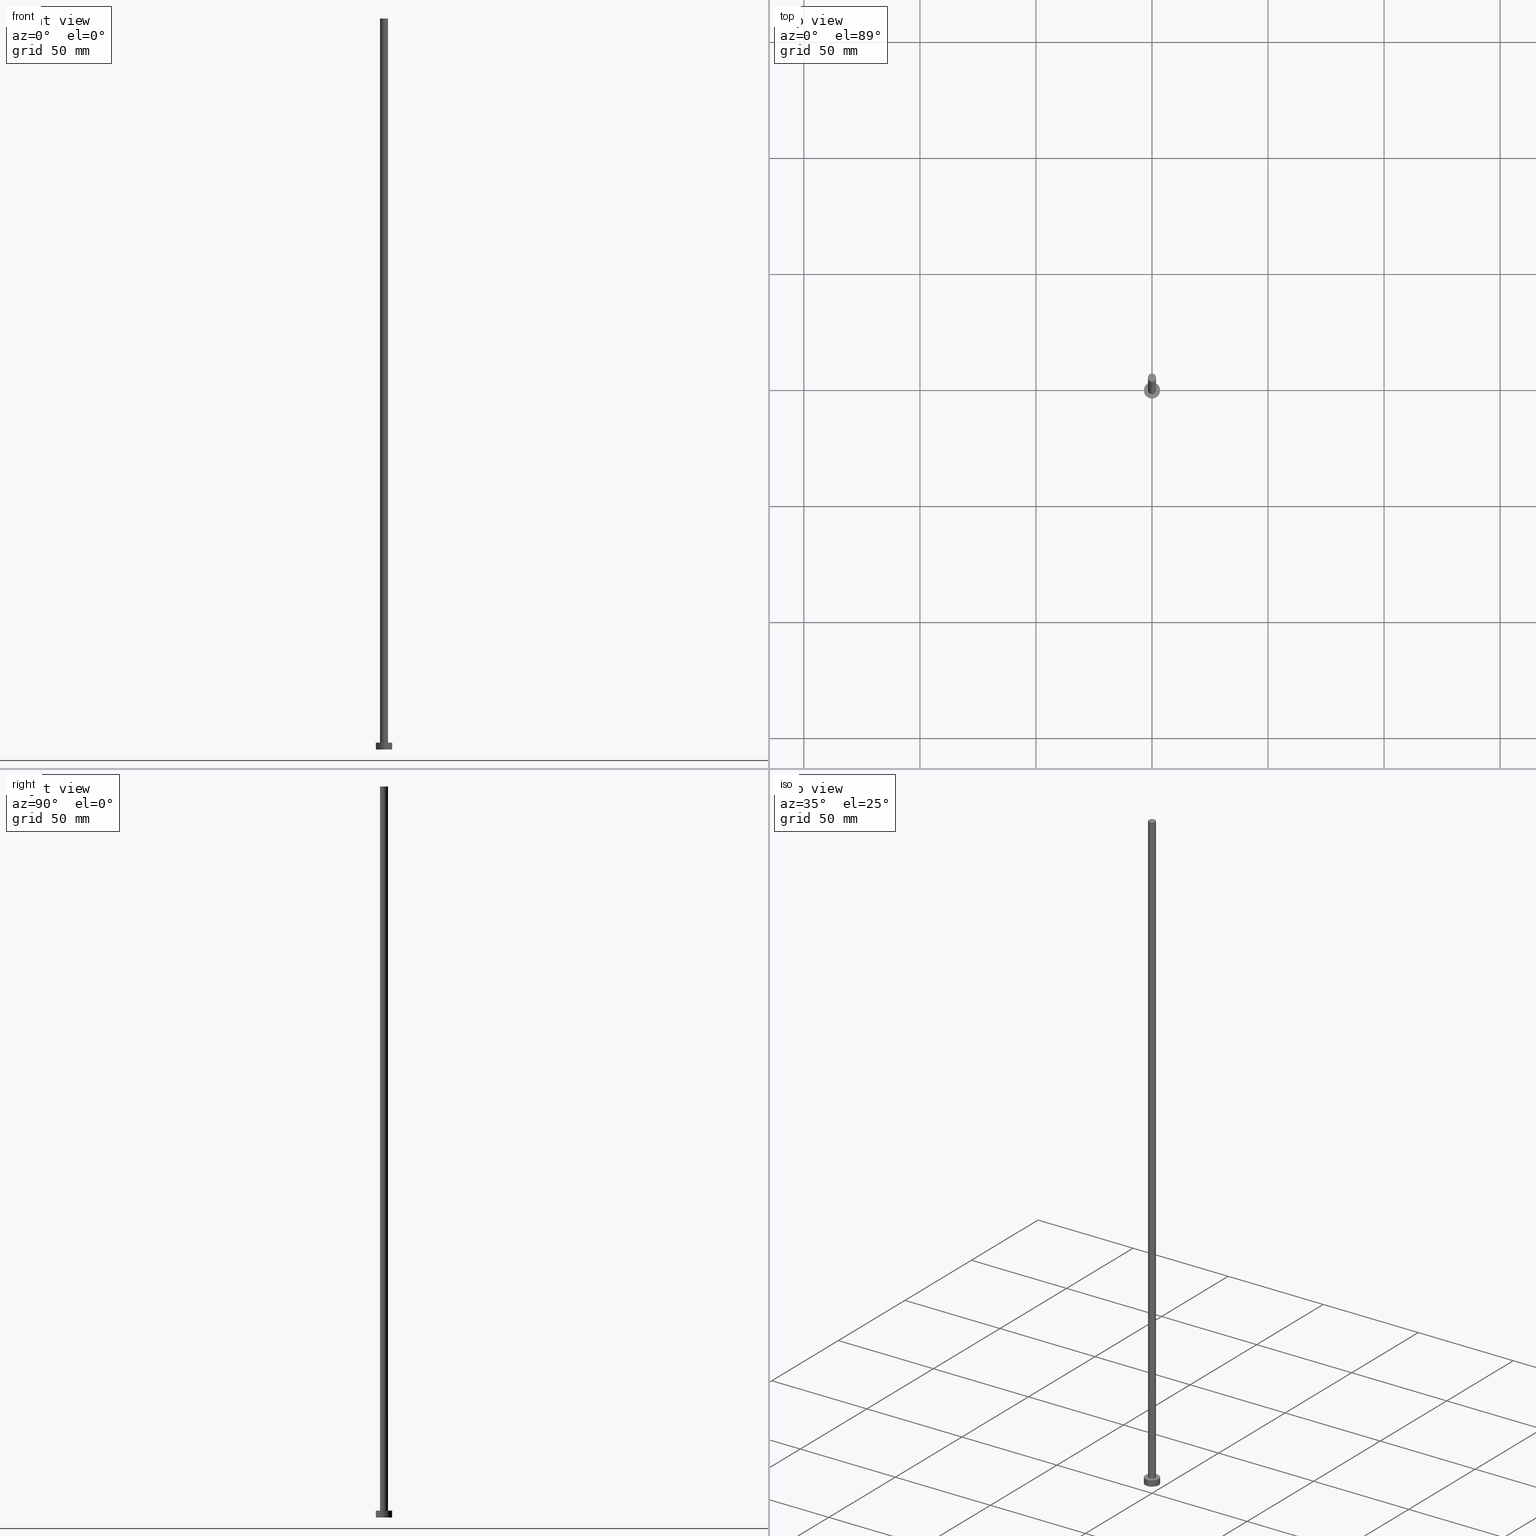
[diagram: canonical four-view strip — front | top / right | iso, engineering-drawing reading convention]
A machine part, canonical four-view strip (front | top / right | iso — engineering-drawing reading convention). The complete STEP part file that produces these views, byte-faithful:
ISO-10303-21;
HEADER;
FILE_DESCRIPTION (( 'STEP AP203' ),
    '1' );
FILE_NAME ('91bf.STEP',
    '2023-02-13T15:34:18',
    ( '' ),
    ( '' ),
    'SwSTEP 2.0',
    'SolidWorks 2019',
    '' );
FILE_SCHEMA (( 'CONFIG_CONTROL_DESIGN' ));
ENDSEC;

DATA;
#1 = DIRECTION ( 'NONE',  ( 1.000000000000000000, 0.000000000000000000, -0.000000000000000000 ) ) ;
#2 = ORIENTED_EDGE ( 'NONE', *, *, #54, .T. ) ;
#3 = AXIS2_PLACEMENT_3D ( 'NONE', #217, #252, #75 ) ;
#4 = AXIS2_PLACEMENT_3D ( 'NONE', #226, #166, #92 ) ;
#5 = APPROVAL_STATUS ( 'not_yet_approved' ) ;
#6 = AXIS2_PLACEMENT_3D ( 'NONE', #99, #160, #19 ) ;
#7 = CARTESIAN_POINT ( 'NONE',  ( -1.750000000000000000, 0.000000000000000000, 3.000000000000000000 ) ) ;
#8 = FACE_OUTER_BOUND ( 'NONE', #180, .T. ) ;
#9 = EDGE_LOOP ( 'NONE', ( #25, #183, #145, #2 ) ) ;
#10 = VERTEX_POINT ( 'NONE', #7 ) ;
#11 = CARTESIAN_POINT ( 'NONE',  ( 0.000000000000000000, 0.000000000000000000, 3.000000000000000000 ) ) ;
#12 = VECTOR ( 'NONE', #26, 1000.000000000000000 ) ;
#13 = PRODUCT_DEFINITION_FORMATION_WITH_SPECIFIED_SOURCE ( 'LIBOVOLN�', '', #168, .NOT_KNOWN. ) ;
#14 = CARTESIAN_POINT ( 'NONE',  ( 0.000000000000000000, 0.000000000000000000, 315.0000000000000000 ) ) ;
#15 = APPROVAL_DATE_TIME ( #200, #94 ) ;
#16 = CC_DESIGN_PERSON_AND_ORGANIZATION_ASSIGNMENT ( #59, #105, ( #149 ) ) ;
#17 = PLANE ( 'NONE',  #3 ) ;
#18 = PERSON_AND_ORGANIZATION ( #45, #107 ) ;
#19 = DIRECTION ( 'NONE',  ( 1.000000000000000000, 0.000000000000000000, 0.000000000000000000 ) ) ;
#20 = DIRECTION ( 'NONE',  ( 0.000000000000000000, 0.000000000000000000, 1.000000000000000000 ) ) ;
#21 = DATE_AND_TIME ( #219, #24 ) ;
#22 = ORIENTED_EDGE ( 'NONE', *, *, #177, .T. ) ;
#23 = VECTOR ( 'NONE', #109, 1000.000000000000000 ) ;
#24 = LOCAL_TIME ( 16, 34, 18.00000000000000000, #144 ) ;
#25 = ORIENTED_EDGE ( 'NONE', *, *, #242, .F. ) ;
#26 = DIRECTION ( 'NONE',  ( -0.000000000000000000, -0.000000000000000000, -1.000000000000000000 ) ) ;
#27 = DIRECTION ( 'NONE',  ( -0.000000000000000000, -0.000000000000000000, -1.000000000000000000 ) ) ;
#28 = AXIS2_PLACEMENT_3D ( 'NONE', #56, #46, #220 ) ;
#29 = CC_DESIGN_SECURITY_CLASSIFICATION ( #149, ( #13 ) ) ;
#30 =( NAMED_UNIT ( * ) PLANE_ANGLE_UNIT ( ) SI_UNIT ( $, .RADIAN. ) );
#31 = ORIENTED_EDGE ( 'NONE', *, *, #190, .T. ) ;
#32 = ADVANCED_FACE ( 'NONE', ( #86 ), #167, .T. ) ;
#33 = APPROVAL_PERSON_ORGANIZATION ( #171, #61, #53 ) ;
#34 = CARTESIAN_POINT ( 'NONE',  ( 0.000000000000000000, 0.000000000000000000, 315.0000000000000000 ) ) ;
#35 = MANIFOLD_SOLID_BREP ( 'P�idat vysunut�m3', #191 ) ;
#36 = FACE_OUTER_BOUND ( 'NONE', #211, .T. ) ;
#37 = CALENDAR_DATE ( 2023, 13, 2 ) ;
#38 = COORDINATED_UNIVERSAL_TIME_OFFSET ( 1, 0, .AHEAD. ) ;
#39 = APPROVAL_DATE_TIME ( #102, #182 ) ;
#40 = CC_DESIGN_PERSON_AND_ORGANIZATION_ASSIGNMENT ( #229, #136, ( #111 ) ) ;
#41 = PERSON_AND_ORGANIZATION_ROLE ( 'creator' ) ;
#42 = EDGE_LOOP ( 'NONE', ( #157, #169 ) ) ;
#43 = PERSON_AND_ORGANIZATION ( #45, #107 ) ;
#44 = EDGE_CURVE ( 'NONE', #184, #104, #203, .T. ) ;
#45 = PERSON ( 'NEUR�EN�', 'NEUR�EN�', 'NEUR�EN�', ('NEUR�EN�'), ('NEUR�EN�'), ('NEUR�EN�') ) ;
#46 = DIRECTION ( 'NONE',  ( 0.000000000000000000, 0.000000000000000000, 1.000000000000000000 ) ) ;
#47 =( GEOMETRIC_REPRESENTATION_CONTEXT ( 3 ) GLOBAL_UNCERTAINTY_ASSIGNED_CONTEXT ( ( #179 ) ) GLOBAL_UNIT_ASSIGNED_CONTEXT ( ( #130, #30, #65 ) ) REPRESENTATION_CONTEXT ( 'NONE', 'WORKASPACE' ) );
#48 = DIRECTION ( 'NONE',  ( 0.000000000000000000, 0.000000000000000000, 1.000000000000000000 ) ) ;
#49 = EDGE_LOOP ( 'NONE', ( #88, #206, #240, #150 ) ) ;
#50 = CARTESIAN_POINT ( 'NONE',  ( -1.750000000000000000, 0.000000000000000000, 315.0000000000000000 ) ) ;
#51 = VERTEX_POINT ( 'NONE', #199 ) ;
#52 = APPLICATION_PROTOCOL_DEFINITION ( 'international standard', 'config_control_design', 1994, #188 ) ;
#53 = APPROVAL_ROLE ( '' ) ;
#54 = EDGE_CURVE ( 'NONE', #104, #184, #172, .T. ) ;
#55 = CALENDAR_DATE ( 2023, 13, 2 ) ;
#56 = CARTESIAN_POINT ( 'NONE',  ( 0.000000000000000000, 0.000000000000000000, 3.000000000000000000 ) ) ;
#57 = CIRCLE ( 'NONE', #98, 1.750000000000000000 ) ;
#58 = CC_DESIGN_PERSON_AND_ORGANIZATION_ASSIGNMENT ( #234, #78, ( #13 ) ) ;
#59 = PERSON_AND_ORGANIZATION ( #45, #107 ) ;
#60 = CYLINDRICAL_SURFACE ( 'NONE', #83, 3.500000000000000444 ) ;
#61 = APPROVAL ( #251, 'NEUR�EN�' ) ;
#62 = CARTESIAN_POINT ( 'NONE',  ( 0.000000000000000000, 0.000000000000000000, 0.000000000000000000 ) ) ;
#63 = DIRECTION ( 'NONE',  ( -0.000000000000000000, -0.000000000000000000, -1.000000000000000000 ) ) ;
#64 = ORIENTED_EDGE ( 'NONE', *, *, #221, .F. ) ;
#65 =( NAMED_UNIT ( * ) SI_UNIT ( $, .STERADIAN. ) SOLID_ANGLE_UNIT ( ) );
#66 = PRODUCT_DEFINITION_SHAPE ( 'NONE', 'NONE',  #111 ) ;
#67 = ORIENTED_EDGE ( 'NONE', *, *, #242, .T. ) ;
#68 = APPLICATION_PROTOCOL_DEFINITION ( 'international standard', 'config_control_design', 1994, #146 ) ;
#69 = CC_DESIGN_PERSON_AND_ORGANIZATION_ASSIGNMENT ( #74, #41, ( #13 ) ) ;
#70 = CARTESIAN_POINT ( 'NONE',  ( 0.000000000000000000, 0.000000000000000000, 315.0000000000000000 ) ) ;
#71 = AXIS2_PLACEMENT_3D ( 'NONE', #14, #250, #138 ) ;
#72 = FACE_OUTER_BOUND ( 'NONE', #189, .T. ) ;
#73 = ADVANCED_BREP_SHAPE_REPRESENTATION ( '91bf', ( #35, #214 ), #47 ) ;
#74 = PERSON_AND_ORGANIZATION ( #45, #107 ) ;
#75 = DIRECTION ( 'NONE',  ( 1.000000000000000000, 0.000000000000000000, -0.000000000000000000 ) ) ;
#76 = CYLINDRICAL_SURFACE ( 'NONE', #114, 1.750000000000000000 ) ;
#77 = CIRCLE ( 'NONE', #28, 1.750000000000000000 ) ;
#78 = PERSON_AND_ORGANIZATION_ROLE ( 'design_supplier' ) ;
#79 = FACE_BOUND ( 'NONE', #42, .T. ) ;
#80 = SECURITY_CLASSIFICATION_LEVEL ( 'unclassified' ) ;
#81 = DESIGN_CONTEXT ( 'detailed design', #146, 'design' ) ;
#82 = ORIENTED_EDGE ( 'NONE', *, *, #156, .T. ) ;
#83 = AXIS2_PLACEMENT_3D ( 'NONE', #11, #27, #148 ) ;
#84 = VERTEX_POINT ( 'NONE', #255 ) ;
#85 = ADVANCED_FACE ( 'NONE', ( #95 ), #76, .T. ) ;
#86 = FACE_OUTER_BOUND ( 'NONE', #49, .T. ) ;
#87 = LOCAL_TIME ( 16, 34, 18.00000000000000000, #38 ) ;
#88 = ORIENTED_EDGE ( 'NONE', *, *, #190, .F. ) ;
#89 = CARTESIAN_POINT ( 'NONE',  ( 3.500000000000000444, 4.286263797015737088E-16, 3.000000000000000000 ) ) ;
#90 = CARTESIAN_POINT ( 'NONE',  ( -1.750000000000000000, 0.000000000000000000, 315.0000000000000000 ) ) ;
#91 = EDGE_LOOP ( 'NONE', ( #248, #31, #133, #132 ) ) ;
#92 = DIRECTION ( 'NONE',  ( 1.000000000000000000, 0.000000000000000000, 0.000000000000000000 ) ) ;
#93 = EDGE_LOOP ( 'NONE', ( #64, #67, #247, #210 ) ) ;
#94 = APPROVAL ( #218, 'NEUR�EN�' ) ;
#95 = FACE_OUTER_BOUND ( 'NONE', #91, .T. ) ;
#96 = DATE_TIME_ROLE ( 'creation_date' ) ;
#97 = CARTESIAN_POINT ( 'NONE',  ( 0.000000000000000000, 0.000000000000000000, 315.0000000000000000 ) ) ;
#98 = AXIS2_PLACEMENT_3D ( 'NONE', #103, #128, #181 ) ;
#99 = CARTESIAN_POINT ( 'NONE',  ( 0.000000000000000000, 0.000000000000000000, 0.000000000000000000 ) ) ;
#100 = CARTESIAN_POINT ( 'NONE',  ( -3.500000000000000444, 0.000000000000000000, 0.000000000000000000 ) ) ;
#101 = CC_DESIGN_APPROVAL ( #182, ( #149 ) ) ;
#102 = DATE_AND_TIME ( #55, #185 ) ;
#103 = CARTESIAN_POINT ( 'NONE',  ( 0.000000000000000000, 0.000000000000000000, 315.0000000000000000 ) ) ;
#104 = VERTEX_POINT ( 'NONE', #100 ) ;
#105 = PERSON_AND_ORGANIZATION_ROLE ( 'classification_officer' ) ;
#106 = LINE ( 'NONE', #134, #237 ) ;
#107 = ORGANIZATION ( 'NEUR�EN�', 'NEUR�EN�', '' ) ;
#108 = DIRECTION ( 'NONE',  ( 0.000000000000000000, 0.000000000000000000, 1.000000000000000000 ) ) ;
#109 = DIRECTION ( 'NONE',  ( -0.000000000000000000, -0.000000000000000000, -1.000000000000000000 ) ) ;
#110 = PLANE ( 'NONE',  #245 ) ;
#111 = PRODUCT_DEFINITION ( 'NEZN�M�', '', #13, #81 ) ;
#112 = ORIENTED_EDGE ( 'NONE', *, *, #44, .F. ) ;
#113 = CYLINDRICAL_SURFACE ( 'NONE', #131, 3.500000000000000444 ) ;
#114 = AXIS2_PLACEMENT_3D ( 'NONE', #70, #216, #162 ) ;
#115 = CC_DESIGN_DATE_AND_TIME_ASSIGNMENT ( #118, #96, ( #111 ) ) ;
#116 = APPROVAL_PERSON_ORGANIZATION ( #43, #182, #127 ) ;
#117 = DIRECTION ( 'NONE',  ( 1.000000000000000000, 0.000000000000000000, 0.000000000000000000 ) ) ;
#118 = DATE_AND_TIME ( #232, #207 ) ;
#119 = DATE_AND_TIME ( #37, #246 ) ;
#120 = DIRECTION ( 'NONE',  ( 0.000000000000000000, 0.000000000000000000, 1.000000000000000000 ) ) ;
#121 = AXIS2_PLACEMENT_3D ( 'NONE', #97, #230, #1 ) ;
#122 = DIRECTION ( 'NONE',  ( 0.000000000000000000, 0.000000000000000000, 1.000000000000000000 ) ) ;
#123 = CARTESIAN_POINT ( 'NONE',  ( 0.000000000000000000, 0.000000000000000000, 0.000000000000000000 ) ) ;
#124 = SHAPE_DEFINITION_REPRESENTATION ( #66, #73 ) ;
#125 = AXIS2_PLACEMENT_3D ( 'NONE', #201, #120, #141 ) ;
#126 = DIRECTION ( 'NONE',  ( 1.000000000000000000, 0.000000000000000000, 0.000000000000000000 ) ) ;
#127 = APPROVAL_ROLE ( '' ) ;
#128 = DIRECTION ( 'NONE',  ( 0.000000000000000000, 0.000000000000000000, 1.000000000000000000 ) ) ;
#129 = EDGE_CURVE ( 'NONE', #193, #104, #198, .T. ) ;
#130 =( LENGTH_UNIT ( ) NAMED_UNIT ( * ) SI_UNIT ( .MILLI., .METRE. ) );
#131 = AXIS2_PLACEMENT_3D ( 'NONE', #153, #224, #192 ) ;
#132 = ORIENTED_EDGE ( 'NONE', *, *, #253, .F. ) ;
#133 = ORIENTED_EDGE ( 'NONE', *, *, #152, .T. ) ;
#134 = CARTESIAN_POINT ( 'NONE',  ( 1.750000000000000000, 2.143131898507868297E-16, 315.0000000000000000 ) ) ;
#135 = ADVANCED_FACE ( 'NONE', ( #36 ), #176, .T. ) ;
#136 = PERSON_AND_ORGANIZATION_ROLE ( 'creator' ) ;
#137 = COORDINATED_UNIVERSAL_TIME_OFFSET ( 1, 0, .AHEAD. ) ;
#138 = DIRECTION ( 'NONE',  ( -1.000000000000000000, 0.000000000000000000, 0.000000000000000000 ) ) ;
#139 = PRODUCT_RELATED_PRODUCT_CATEGORY ( 'detail', '', ( #168 ) ) ;
#140 = CIRCLE ( 'NONE', #178, 3.500000000000000444 ) ;
#141 = DIRECTION ( 'NONE',  ( 1.000000000000000000, 0.000000000000000000, 0.000000000000000000 ) ) ;
#142 = ADVANCED_FACE ( 'NONE', ( #79, #72 ), #17, .T. ) ;
#143 = CIRCLE ( 'NONE', #205, 1.750000000000000000 ) ;
#144 = COORDINATED_UNIVERSAL_TIME_OFFSET ( 1, 0, .AHEAD. ) ;
#145 = ORIENTED_EDGE ( 'NONE', *, *, #129, .T. ) ;
#146 = APPLICATION_CONTEXT ( 'configuration controlled 3d designs of mechanical parts and assemblies' ) ;
#147 = CIRCLE ( 'NONE', #159, 1.750000000000000000 ) ;
#148 = DIRECTION ( 'NONE',  ( -1.000000000000000000, 0.000000000000000000, 0.000000000000000000 ) ) ;
#149 = SECURITY_CLASSIFICATION ( '', '', #80 ) ;
#150 = ORIENTED_EDGE ( 'NONE', *, *, #161, .T. ) ;
#151 = DIRECTION ( 'NONE',  ( 1.000000000000000000, 0.000000000000000000, -0.000000000000000000 ) ) ;
#152 = EDGE_CURVE ( 'NONE', #51, #10, #143, .T. ) ;
#153 = CARTESIAN_POINT ( 'NONE',  ( 0.000000000000000000, 0.000000000000000000, 3.000000000000000000 ) ) ;
#154 = ORIENTED_EDGE ( 'NONE', *, *, #173, .T. ) ;
#155 = LINE ( 'NONE', #89, #23 ) ;
#156 = EDGE_CURVE ( 'NONE', #228, #241, #147, .T. ) ;
#157 = ORIENTED_EDGE ( 'NONE', *, *, #161, .F. ) ;
#158 = CALENDAR_DATE ( 2023, 13, 2 ) ;
#159 = AXIS2_PLACEMENT_3D ( 'NONE', #34, #20, #126 ) ;
#160 = DIRECTION ( 'NONE',  ( 0.000000000000000000, 0.000000000000000000, 1.000000000000000000 ) ) ;
#161 = EDGE_CURVE ( 'NONE', #10, #51, #77, .T. ) ;
#162 = DIRECTION ( 'NONE',  ( -1.000000000000000000, 0.000000000000000000, 0.000000000000000000 ) ) ;
#163 = CARTESIAN_POINT ( 'NONE',  ( 0.000000000000000000, 0.000000000000000000, 3.000000000000000000 ) ) ;
#164 = CARTESIAN_POINT ( 'NONE',  ( 0.000000000000000000, 0.000000000000000000, 3.000000000000000000 ) ) ;
#165 = CARTESIAN_POINT ( 'NONE',  ( 3.500000000000000444, 4.286263797015737088E-16, 0.000000000000000000 ) ) ;
#166 = DIRECTION ( 'NONE',  ( 0.000000000000000000, 0.000000000000000000, 1.000000000000000000 ) ) ;
#167 = CYLINDRICAL_SURFACE ( 'NONE', #71, 1.750000000000000000 ) ;
#168 = PRODUCT ( '91bf', '91bf', '', ( #195 ) ) ;
#169 = ORIENTED_EDGE ( 'NONE', *, *, #152, .F. ) ;
#170 = PERSON_AND_ORGANIZATION ( #45, #107 ) ;
#171 = PERSON_AND_ORGANIZATION ( #45, #107 ) ;
#172 = CIRCLE ( 'NONE', #6, 3.500000000000000444 ) ;
#173 = EDGE_CURVE ( 'NONE', #241, #228, #57, .T. ) ;
#174 = DIRECTION ( 'NONE',  ( -0.000000000000000000, -0.000000000000000000, -1.000000000000000000 ) ) ;
#175 = COORDINATED_UNIVERSAL_TIME_OFFSET ( 1, 0, .AHEAD. ) ;
#176 = PLANE ( 'NONE',  #121 ) ;
#177 = EDGE_CURVE ( 'NONE', #193, #84, #140, .T. ) ;
#178 = AXIS2_PLACEMENT_3D ( 'NONE', #164, #108, #223 ) ;
#179 = UNCERTAINTY_MEASURE_WITH_UNIT (LENGTH_MEASURE( 1.000000000000000082E-05 ), #130, 'distance_accuracy_value', 'NONE');
#180 = EDGE_LOOP ( 'NONE', ( #186, #112 ) ) ;
#181 = DIRECTION ( 'NONE',  ( 1.000000000000000000, 0.000000000000000000, 0.000000000000000000 ) ) ;
#182 = APPROVAL ( #5, 'NEUR�EN�' ) ;
#183 = ORIENTED_EDGE ( 'NONE', *, *, #177, .F. ) ;
#184 = VERTEX_POINT ( 'NONE', #165 ) ;
#185 = LOCAL_TIME ( 16, 34, 18.00000000000000000, #175 ) ;
#186 = ORIENTED_EDGE ( 'NONE', *, *, #54, .F. ) ;
#187 = FACE_OUTER_BOUND ( 'NONE', #93, .T. ) ;
#188 = APPLICATION_CONTEXT ( 'configuration controlled 3d designs of mechanical parts and assemblies' ) ;
#189 = EDGE_LOOP ( 'NONE', ( #22, #222 ) ) ;
#190 = EDGE_CURVE ( 'NONE', #241, #51, #106, .T. ) ;
#191 = CLOSED_SHELL ( 'NONE', ( #85, #196, #202, #142, #239, #32, #135 ) ) ;
#192 = DIRECTION ( 'NONE',  ( -1.000000000000000000, 0.000000000000000000, 0.000000000000000000 ) ) ;
#193 = VERTEX_POINT ( 'NONE', #212 ) ;
#194 = APPROVAL_PERSON_ORGANIZATION ( #18, #94, #254 ) ;
#195 = MECHANICAL_CONTEXT ( 'NONE', #188, 'mechanical' ) ;
#196 = ADVANCED_FACE ( 'NONE', ( #187 ), #113, .T. ) ;
#197 = APPROVAL_DATE_TIME ( #119, #61 ) ;
#198 = LINE ( 'NONE', #233, #244 ) ;
#199 = CARTESIAN_POINT ( 'NONE',  ( 1.750000000000000000, 2.143131898507868297E-16, 3.000000000000000000 ) ) ;
#200 = DATE_AND_TIME ( #158, #87 ) ;
#201 = CARTESIAN_POINT ( 'NONE',  ( 0.000000000000000000, 0.000000000000000000, 0.000000000000000000 ) ) ;
#202 = ADVANCED_FACE ( 'NONE', ( #209 ), #60, .T. ) ;
#203 = CIRCLE ( 'NONE', #125, 3.500000000000000444 ) ;
#204 = CC_DESIGN_PERSON_AND_ORGANIZATION_ASSIGNMENT ( #170, #249, ( #168 ) ) ;
#205 = AXIS2_PLACEMENT_3D ( 'NONE', #163, #235, #213 ) ;
#206 = ORIENTED_EDGE ( 'NONE', *, *, #156, .F. ) ;
#207 = LOCAL_TIME ( 16, 34, 18.00000000000000000, #215 ) ;
#208 = CARTESIAN_POINT ( 'NONE',  ( 1.750000000000000000, 2.143131898507868297E-16, 315.0000000000000000 ) ) ;
#209 = FACE_OUTER_BOUND ( 'NONE', #9, .T. ) ;
#210 = ORIENTED_EDGE ( 'NONE', *, *, #129, .F. ) ;
#211 = EDGE_LOOP ( 'NONE', ( #82, #154 ) ) ;
#212 = CARTESIAN_POINT ( 'NONE',  ( -3.500000000000000444, 0.000000000000000000, 3.000000000000000000 ) ) ;
#213 = DIRECTION ( 'NONE',  ( 1.000000000000000000, 0.000000000000000000, 0.000000000000000000 ) ) ;
#214 = AXIS2_PLACEMENT_3D ( 'NONE', #123, #122, #117 ) ;
#215 = COORDINATED_UNIVERSAL_TIME_OFFSET ( 1, 0, .AHEAD. ) ;
#216 = DIRECTION ( 'NONE',  ( -0.000000000000000000, -0.000000000000000000, -1.000000000000000000 ) ) ;
#217 = CARTESIAN_POINT ( 'NONE',  ( 0.000000000000000000, 0.000000000000000000, 3.000000000000000000 ) ) ;
#218 = APPROVAL_STATUS ( 'not_yet_approved' ) ;
#219 = CALENDAR_DATE ( 2023, 13, 2 ) ;
#220 = DIRECTION ( 'NONE',  ( 1.000000000000000000, 0.000000000000000000, 0.000000000000000000 ) ) ;
#221 = EDGE_CURVE ( 'NONE', #84, #193, #231, .T. ) ;
#222 = ORIENTED_EDGE ( 'NONE', *, *, #221, .T. ) ;
#223 = DIRECTION ( 'NONE',  ( 1.000000000000000000, 0.000000000000000000, 0.000000000000000000 ) ) ;
#224 = DIRECTION ( 'NONE',  ( -0.000000000000000000, -0.000000000000000000, -1.000000000000000000 ) ) ;
#225 = CC_DESIGN_APPROVAL ( #94, ( #111 ) ) ;
#226 = CARTESIAN_POINT ( 'NONE',  ( 0.000000000000000000, 0.000000000000000000, 3.000000000000000000 ) ) ;
#227 = CC_DESIGN_DATE_AND_TIME_ASSIGNMENT ( #21, #236, ( #149 ) ) ;
#228 = VERTEX_POINT ( 'NONE', #50 ) ;
#229 = PERSON_AND_ORGANIZATION ( #45, #107 ) ;
#230 = DIRECTION ( 'NONE',  ( 0.000000000000000000, 0.000000000000000000, 1.000000000000000000 ) ) ;
#231 = CIRCLE ( 'NONE', #4, 3.500000000000000444 ) ;
#232 = CALENDAR_DATE ( 2023, 13, 2 ) ;
#233 = CARTESIAN_POINT ( 'NONE',  ( -3.500000000000000444, 0.000000000000000000, 3.000000000000000000 ) ) ;
#234 = PERSON_AND_ORGANIZATION ( #45, #107 ) ;
#235 = DIRECTION ( 'NONE',  ( 0.000000000000000000, 0.000000000000000000, 1.000000000000000000 ) ) ;
#236 = DATE_TIME_ROLE ( 'classification_date' ) ;
#237 = VECTOR ( 'NONE', #63, 1000.000000000000000 ) ;
#238 = CC_DESIGN_APPROVAL ( #61, ( #13 ) ) ;
#239 = ADVANCED_FACE ( 'NONE', ( #8 ), #110, .F. ) ;
#240 = ORIENTED_EDGE ( 'NONE', *, *, #253, .T. ) ;
#241 = VERTEX_POINT ( 'NONE', #208 ) ;
#242 = EDGE_CURVE ( 'NONE', #84, #184, #155, .T. ) ;
#243 = LINE ( 'NONE', #90, #12 ) ;
#244 = VECTOR ( 'NONE', #174, 1000.000000000000000 ) ;
#245 = AXIS2_PLACEMENT_3D ( 'NONE', #62, #48, #151 ) ;
#246 = LOCAL_TIME ( 16, 34, 18.00000000000000000, #137 ) ;
#247 = ORIENTED_EDGE ( 'NONE', *, *, #44, .T. ) ;
#248 = ORIENTED_EDGE ( 'NONE', *, *, #173, .F. ) ;
#249 = PERSON_AND_ORGANIZATION_ROLE ( 'design_owner' ) ;
#250 = DIRECTION ( 'NONE',  ( -0.000000000000000000, -0.000000000000000000, -1.000000000000000000 ) ) ;
#251 = APPROVAL_STATUS ( 'not_yet_approved' ) ;
#252 = DIRECTION ( 'NONE',  ( 0.000000000000000000, 0.000000000000000000, 1.000000000000000000 ) ) ;
#253 = EDGE_CURVE ( 'NONE', #228, #10, #243, .T. ) ;
#254 = APPROVAL_ROLE ( '' ) ;
#255 = CARTESIAN_POINT ( 'NONE',  ( 3.500000000000000444, 4.286263797015737088E-16, 3.000000000000000000 ) ) ;
ENDSEC;
END-ISO-10303-21;
